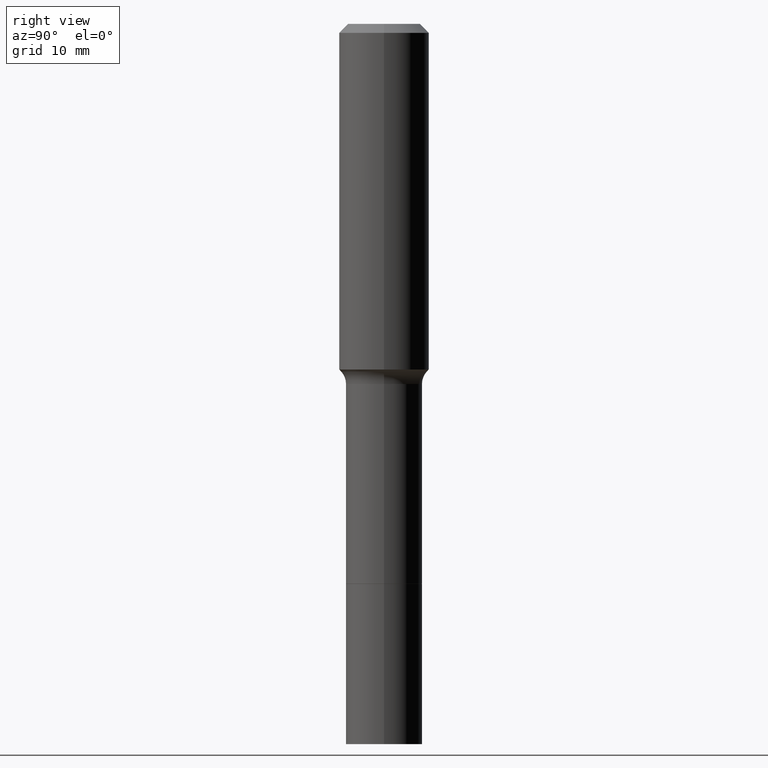
[diagram: clean part render]
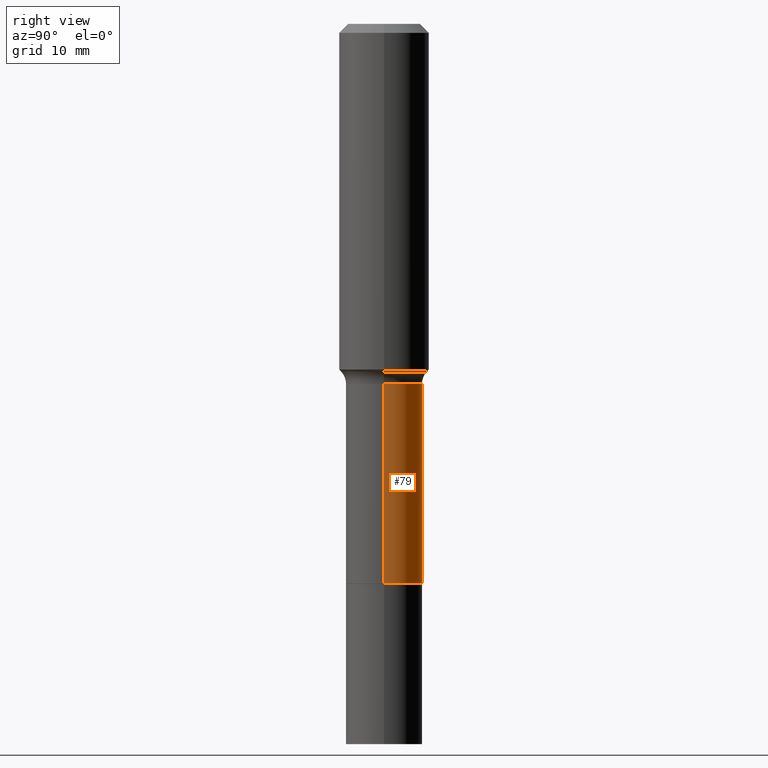
[diagram: same view with one face highlighted and labeled with its STEP entity id]
A machine part, right view. The second image highlights one B-rep face of the part: STEP entity #79.
In plain terms, the highlighted cylindrical surface (partial cylindrical patch) has radius 4.2494 mm, axis along (-0, 0, 1).
Its self-contained STEP definition (entity closure, byte-faithful):
#21 = VECTOR ( 'NONE', #369, 39.37007874015748143 ) ;
#27 = EDGE_LOOP ( 'NONE', ( #64, #409, #155, #149 ) ) ;
#42 = EDGE_CURVE ( 'NONE', #289, #429, #108, .T. ) ;
#43 = DIRECTION ( 'NONE',  ( 1.000000000000000000, -6.982962677686264344E-15, 0.000000000000000000 ) ) ;
#49 = LINE ( 'NONE', #416, #21 ) ;
#59 = EDGE_CURVE ( 'NONE', #429, #339, #190, .T. ) ;
#64 = ORIENTED_EDGE ( 'NONE', *, *, #517, .T. ) ;
#79 = ADVANCED_FACE ( 'NONE', ( #484 ), #198, .T. ) ;
#92 = CARTESIAN_POINT ( 'NONE',  ( -0.1673000000000000043, -5.833852993955513627E-15, -2.448100000000000165 ) ) ;
#108 = LINE ( 'NONE', #327, #411 ) ;
#149 = ORIENTED_EDGE ( 'NONE', *, *, #42, .F. ) ;
#155 = ORIENTED_EDGE ( 'NONE', *, *, #59, .F. ) ;
#190 = CIRCLE ( 'NONE', #478, 0.1672999999999999210 ) ;
#198 = CYLINDRICAL_SURFACE ( 'NONE', #469, 0.1672999999999999488 ) ;
#235 = EDGE_CURVE ( 'NONE', #271, #339, #49, .T. ) ;
#245 = DIRECTION ( 'NONE',  ( -2.445468806185136597E-29, 3.491481338843145583E-15, 1.000000000000000000 ) ) ;
#248 = CARTESIAN_POINT ( 'NONE',  ( 0.000000000000000000, 0.000000000000000000, 0.000000000000000000 ) ) ;
#270 = CARTESIAN_POINT ( 'NONE',  ( -0.1672999999999999210, -5.833852993955514416E-15, -1.574600000000000222 ) ) ;
#271 = VERTEX_POINT ( 'NONE', #92 ) ;
#281 = CARTESIAN_POINT ( 'NONE',  ( 5.986752184421833586E-29, -8.547495465621905772E-15, -2.448100000000000165 ) ) ;
#285 = DIRECTION ( 'NONE',  ( -2.445468806185136597E-29, 3.491481338843145583E-15, 1.000000000000000000 ) ) ;
#289 = VERTEX_POINT ( 'NONE', #335 ) ;
#327 = CARTESIAN_POINT ( 'NONE',  ( 0.1672999999999999488, -1.168249655976912195E-15, 8.157843745906598810E-30 ) ) ;
#335 = CARTESIAN_POINT ( 'NONE',  ( 0.1673000000000000043, -9.715745121598816981E-15, -2.448100000000000165 ) ) ;
#339 = VERTEX_POINT ( 'NONE', #270 ) ;
#369 = DIRECTION ( 'NONE',  ( -2.445468806185136877E-29, 3.491481338843145188E-15, 1.000000000000000000 ) ) ;
#379 = CIRCLE ( 'NONE', #456, 0.1673000000000000043 ) ;
#397 = CARTESIAN_POINT ( 'NONE',  ( 3.850635182219116347E-29, -5.497686516142417553E-15, -1.574600000000000222 ) ) ;
#402 = DIRECTION ( 'NONE',  ( -2.445468806185136877E-29, 3.491481338843145188E-15, 1.000000000000000000 ) ) ;
#409 = ORIENTED_EDGE ( 'NONE', *, *, #235, .T. ) ;
#411 = VECTOR ( 'NONE', #402, 39.37007874015748143 ) ;
#416 = CARTESIAN_POINT ( 'NONE',  ( -0.1672999999999999488, 1.188737996926647247E-15, -8.229378405996454748E-30 ) ) ;
#429 = VERTEX_POINT ( 'NONE', #459 ) ;
#436 = DIRECTION ( 'NONE',  ( -2.445468806185136597E-29, 3.491481338843145583E-15, 1.000000000000000000 ) ) ;
#456 = AXIS2_PLACEMENT_3D ( 'NONE', #281, #436, #43 ) ;
#459 = CARTESIAN_POINT ( 'NONE',  ( 0.1672999999999999210, -6.665936172119329551E-15, -1.574600000000000222 ) ) ;
#469 = AXIS2_PLACEMENT_3D ( 'NONE', #248, #245, #479 ) ;
#478 = AXIS2_PLACEMENT_3D ( 'NONE', #397, #285, #515 ) ;
#479 = DIRECTION ( 'NONE',  ( 1.000000000000000000, -6.982962677686267499E-15, 4.876176775795936353E-29 ) ) ;
#484 = FACE_OUTER_BOUND ( 'NONE', #27, .T. ) ;
#515 = DIRECTION ( 'NONE',  ( 1.000000000000000000, -6.982962677686267499E-15, 0.000000000000000000 ) ) ;
#517 = EDGE_CURVE ( 'NONE', #289, #271, #379, .T. ) ;